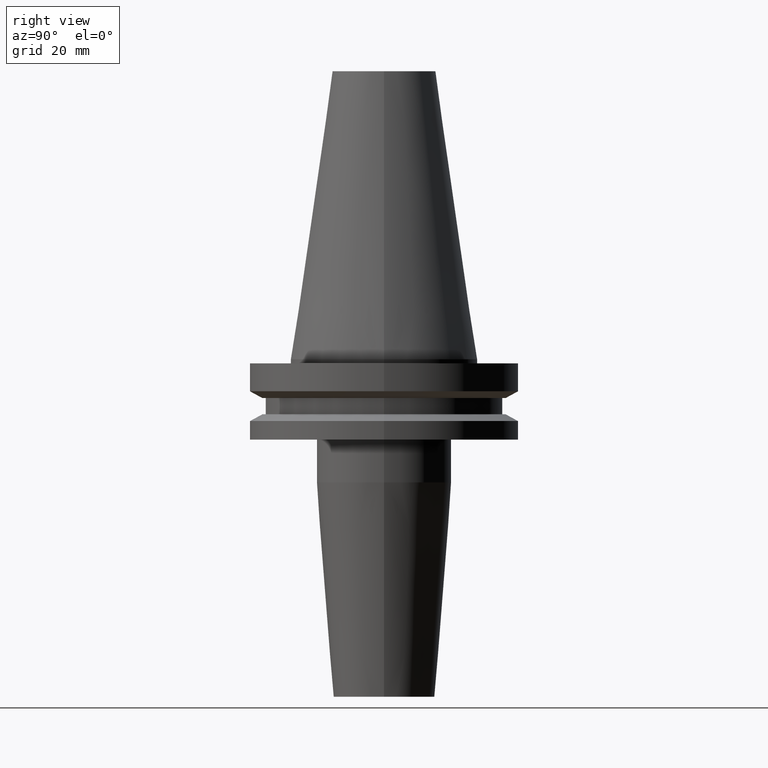
[diagram: clean part render]
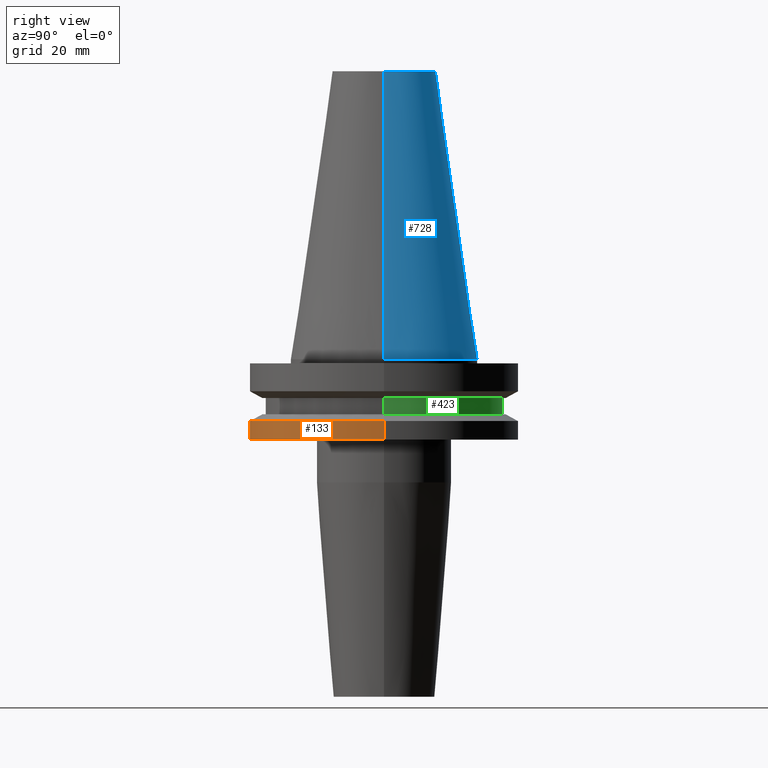
[diagram: same view with three faces highlighted in distinct colors, each labeled with its STEP entity id]
A machine part, right view with three faces highlighted in distinct colors.
Their STEP definitions:

[orange] entity #133 — the highlighted cylindrical surface (partial cylindrical patch) has radius 31.75 mm, axis along (-0, -0, 1).
#37 = FACE_OUTER_BOUND ( 'NONE', #410, .T. ) ;
#57 = AXIS2_PLACEMENT_3D ( 'NONE', #59, #308, #768 ) ;
#59 = CARTESIAN_POINT ( 'NONE',  ( 0.000000000000000000, 0.000000000000000000, -19.04999999999999716 ) ) ;
#68 = DIRECTION ( 'NONE',  ( -0.000000000000000000, -0.000000000000000000, 1.000000000000000000 ) ) ;
#75 = CARTESIAN_POINT ( 'NONE',  ( -31.75000000000000000, 3.888253587292846476E-15, -14.65472339340266572 ) ) ;
#82 = VERTEX_POINT ( 'NONE', #75 ) ;
#111 = VECTOR ( 'NONE', #479, 1000.000000000000000 ) ;
#133 = ADVANCED_FACE ( 'NONE', ( #37 ), #221, .T. ) ;
#139 = CARTESIAN_POINT ( 'NONE',  ( -31.74999999999999289, 3.888253587292845687E-15, -19.04999999999999716 ) ) ;
#141 = EDGE_CURVE ( 'NONE', #82, #577, #563, .T. ) ;
#163 = DIRECTION ( 'NONE',  ( 1.000000000000000000, 0.000000000000000000, 0.000000000000000000 ) ) ;
#192 = ORIENTED_EDGE ( 'NONE', *, *, #743, .T. ) ;
#221 = CYLINDRICAL_SURFACE ( 'NONE', #745, 31.75000000000000000 ) ;
#282 = CARTESIAN_POINT ( 'NONE',  ( 31.75000000000000000, 0.000000000000000000, 68.25000000000000000 ) ) ;
#308 = DIRECTION ( 'NONE',  ( -0.000000000000000000, -0.000000000000000000, 1.000000000000000000 ) ) ;
#318 = CIRCLE ( 'NONE', #57, 31.74999999999999289 ) ;
#349 = LINE ( 'NONE', #527, #111 ) ;
#402 = VECTOR ( 'NONE', #68, 1000.000000000000000 ) ;
#410 = EDGE_LOOP ( 'NONE', ( #711, #613, #192, #587 ) ) ;
#460 = DIRECTION ( 'NONE',  ( -0.000000000000000000, -0.000000000000000000, 1.000000000000000000 ) ) ;
#465 = AXIS2_PLACEMENT_3D ( 'NONE', #747, #460, #676 ) ;
#479 = DIRECTION ( 'NONE',  ( -0.000000000000000000, -0.000000000000000000, 1.000000000000000000 ) ) ;
#527 = CARTESIAN_POINT ( 'NONE',  ( -31.75000000000000000, 3.888253587292846476E-15, 68.25000000000000000 ) ) ;
#563 = CIRCLE ( 'NONE', #465, 31.75000000000000000 ) ;
#573 = VERTEX_POINT ( 'NONE', #600 ) ;
#577 = VERTEX_POINT ( 'NONE', #700 ) ;
#587 = ORIENTED_EDGE ( 'NONE', *, *, #141, .F. ) ;
#589 = EDGE_CURVE ( 'NONE', #775, #573, #318, .T. ) ;
#600 = CARTESIAN_POINT ( 'NONE',  ( 31.74999999999999289, 0.000000000000000000, -19.04999999999999716 ) ) ;
#613 = ORIENTED_EDGE ( 'NONE', *, *, #589, .T. ) ;
#624 = CARTESIAN_POINT ( 'NONE',  ( 0.000000000000000000, 0.000000000000000000, 68.25000000000000000 ) ) ;
#631 = EDGE_CURVE ( 'NONE', #775, #82, #349, .T. ) ;
#670 = LINE ( 'NONE', #282, #402 ) ;
#676 = DIRECTION ( 'NONE',  ( 1.000000000000000000, 0.000000000000000000, 0.000000000000000000 ) ) ;
#700 = CARTESIAN_POINT ( 'NONE',  ( 31.75000000000000000, 0.000000000000000000, -14.65472339340266572 ) ) ;
#711 = ORIENTED_EDGE ( 'NONE', *, *, #631, .F. ) ;
#734 = DIRECTION ( 'NONE',  ( -0.000000000000000000, -0.000000000000000000, 1.000000000000000000 ) ) ;
#743 = EDGE_CURVE ( 'NONE', #573, #577, #670, .T. ) ;
#745 = AXIS2_PLACEMENT_3D ( 'NONE', #624, #734, #163 ) ;
#747 = CARTESIAN_POINT ( 'NONE',  ( 0.000000000000000000, 0.000000000000000000, -14.65472339340266572 ) ) ;
#768 = DIRECTION ( 'NONE',  ( 1.000000000000000000, 0.000000000000000000, 0.000000000000000000 ) ) ;
#775 = VERTEX_POINT ( 'NONE', #139 ) ;

[blue] entity #728 — the highlighted conical surface has half-angle 8.297 deg.
#58 = CARTESIAN_POINT ( 'NONE',  ( 0.000000000000000000, 0.000000000000000000, 68.25000000000000000 ) ) ;
#61 = AXIS2_PLACEMENT_3D ( 'NONE', #104, #351, #422 ) ;
#65 = DIRECTION ( 'NONE',  ( -0.1443082272672999711, 0.000000000000000000, -0.9895327864921755756 ) ) ;
#70 = AXIS2_PLACEMENT_3D ( 'NONE', #316, #610, #212 ) ;
#71 = EDGE_CURVE ( 'NONE', #417, #170, #369, .T. ) ;
#97 = EDGE_CURVE ( 'NONE', #417, #177, #458, .T. ) ;
#104 = CARTESIAN_POINT ( 'NONE',  ( 0.000000000000000000, 0.000000000000000000, 0.000000000000000000 ) ) ;
#132 = LINE ( 'NONE', #255, #659 ) ;
#151 = CARTESIAN_POINT ( 'NONE',  ( -12.27178102086201150, 0.000000000000000000, 68.25000000000000000 ) ) ;
#170 = VERTEX_POINT ( 'NONE', #681 ) ;
#172 = ORIENTED_EDGE ( 'NONE', *, *, #616, .F. ) ;
#177 = VERTEX_POINT ( 'NONE', #151 ) ;
#212 = DIRECTION ( 'NONE',  ( -1.000000000000000000, 0.000000000000000000, 0.000000000000000000 ) ) ;
#218 = FACE_OUTER_BOUND ( 'NONE', #663, .T. ) ;
#228 = EDGE_CURVE ( 'NONE', #170, #355, #537, .T. ) ;
#255 = CARTESIAN_POINT ( 'NONE',  ( -22.22500000000000142, 0.000000000000000000, 0.000000000000000000 ) ) ;
#307 = DIRECTION ( 'NONE',  ( -0.000000000000000000, -0.000000000000000000, 1.000000000000000000 ) ) ;
#309 = ORIENTED_EDGE ( 'NONE', *, *, #71, .T. ) ;
#312 = CARTESIAN_POINT ( 'NONE',  ( 22.22500000000000142, 2.721777511104992849E-15, 0.000000000000000000 ) ) ;
#316 = CARTESIAN_POINT ( 'NONE',  ( 0.000000000000000000, 0.000000000000000000, 0.000000000000000000 ) ) ;
#339 = AXIS2_PLACEMENT_3D ( 'NONE', #58, #307, #773 ) ;
#351 = DIRECTION ( 'NONE',  ( -0.000000000000000000, -0.000000000000000000, 1.000000000000000000 ) ) ;
#355 = VERTEX_POINT ( 'NONE', #531 ) ;
#369 = LINE ( 'NONE', #312, #760 ) ;
#417 = VERTEX_POINT ( 'NONE', #437 ) ;
#422 = DIRECTION ( 'NONE',  ( 1.000000000000000000, 0.000000000000000000, 0.000000000000000000 ) ) ;
#437 = CARTESIAN_POINT ( 'NONE',  ( 12.27178102086201150, 2.112318622904291439E-15, 68.25000000000000000 ) ) ;
#458 = CIRCLE ( 'NONE', #339, 12.27178102086201150 ) ;
#492 = DIRECTION ( 'NONE',  ( 0.1443082272672999711, 1.767266086135276757E-17, -0.9895327864921755756 ) ) ;
#531 = CARTESIAN_POINT ( 'NONE',  ( -22.22500000000000142, 0.000000000000000000, 0.000000000000000000 ) ) ;
#537 = CIRCLE ( 'NONE', #61, 22.22500000000000142 ) ;
#547 = CONICAL_SURFACE ( 'NONE', #70, 22.22500000000000142, 0.1448138465474119174 ) ;
#610 = DIRECTION ( 'NONE',  ( 0.000000000000000000, 0.000000000000000000, -1.000000000000000000 ) ) ;
#616 = EDGE_CURVE ( 'NONE', #177, #355, #132, .T. ) ;
#649 = ORIENTED_EDGE ( 'NONE', *, *, #97, .F. ) ;
#659 = VECTOR ( 'NONE', #65, 999.9999999999998863 ) ;
#663 = EDGE_LOOP ( 'NONE', ( #649, #309, #772, #172 ) ) ;
#681 = CARTESIAN_POINT ( 'NONE',  ( 22.22500000000000142, 2.721777511104992849E-15, 0.000000000000000000 ) ) ;
#728 = ADVANCED_FACE ( 'NONE', ( #218 ), #547, .T. ) ;
#760 = VECTOR ( 'NONE', #492, 999.9999999999998863 ) ;
#772 = ORIENTED_EDGE ( 'NONE', *, *, #228, .T. ) ;
#773 = DIRECTION ( 'NONE',  ( 1.000000000000000000, 0.000000000000000000, 0.000000000000000000 ) ) ;

[green] entity #423 — the highlighted cylindrical surface (partial cylindrical patch) has radius 28.18 mm, axis along (-0, -0, 1).
#9 = CARTESIAN_POINT ( 'NONE',  ( 0.000000000000000000, 0.000000000000000000, 68.25000000000000000 ) ) ;
#11 = VECTOR ( 'NONE', #24, 1000.000000000000000 ) ;
#24 = DIRECTION ( 'NONE',  ( -0.000000000000000000, -0.000000000000000000, 1.000000000000000000 ) ) ;
#33 = CARTESIAN_POINT ( 'NONE',  ( -28.17999999999999972, 3.451054679997241634E-15, -13.05499999999999794 ) ) ;
#96 = EDGE_CURVE ( 'NONE', #406, #203, #731, .T. ) ;
#108 = VECTOR ( 'NONE', #596, 1000.000000000000000 ) ;
#112 = ORIENTED_EDGE ( 'NONE', *, *, #217, .F. ) ;
#137 = CYLINDRICAL_SURFACE ( 'NONE', #420, 28.17999999999999972 ) ;
#161 = DIRECTION ( 'NONE',  ( 1.000000000000000000, 0.000000000000000000, 0.000000000000000000 ) ) ;
#191 = VERTEX_POINT ( 'NONE', #512 ) ;
#203 = VERTEX_POINT ( 'NONE', #33 ) ;
#209 = FACE_OUTER_BOUND ( 'NONE', #438, .T. ) ;
#217 = EDGE_CURVE ( 'NONE', #191, #686, #508, .T. ) ;
#256 = ORIENTED_EDGE ( 'NONE', *, *, #96, .T. ) ;
#276 = AXIS2_PLACEMENT_3D ( 'NONE', #323, #363, #598 ) ;
#281 = DIRECTION ( 'NONE',  ( -0.000000000000000000, -0.000000000000000000, 1.000000000000000000 ) ) ;
#292 = AXIS2_PLACEMENT_3D ( 'NONE', #564, #281, #161 ) ;
#323 = CARTESIAN_POINT ( 'NONE',  ( 0.000000000000000000, 0.000000000000000000, -13.05499999999999794 ) ) ;
#341 = EDGE_CURVE ( 'NONE', #406, #191, #482, .T. ) ;
#346 = ORIENTED_EDGE ( 'NONE', *, *, #341, .F. ) ;
#356 = CARTESIAN_POINT ( 'NONE',  ( 28.17999999999999972, 0.000000000000000000, 68.25000000000000000 ) ) ;
#363 = DIRECTION ( 'NONE',  ( -0.000000000000000000, -0.000000000000000000, 1.000000000000000000 ) ) ;
#406 = VERTEX_POINT ( 'NONE', #550 ) ;
#420 = AXIS2_PLACEMENT_3D ( 'NONE', #9, #440, #667 ) ;
#423 = ADVANCED_FACE ( 'NONE', ( #209 ), #137, .T. ) ;
#438 = EDGE_LOOP ( 'NONE', ( #256, #568, #112, #346 ) ) ;
#440 = DIRECTION ( 'NONE',  ( -0.000000000000000000, -0.000000000000000000, 1.000000000000000000 ) ) ;
#471 = EDGE_CURVE ( 'NONE', #203, #686, #725, .T. ) ;
#482 = LINE ( 'NONE', #356, #108 ) ;
#508 = CIRCLE ( 'NONE', #292, 28.17999999999999972 ) ;
#512 = CARTESIAN_POINT ( 'NONE',  ( 28.17999999999999972, 0.000000000000000000, -9.204999999999991189 ) ) ;
#545 = CARTESIAN_POINT ( 'NONE',  ( -28.17999999999999972, 3.451054679997241634E-15, -9.204999999999991189 ) ) ;
#550 = CARTESIAN_POINT ( 'NONE',  ( 28.17999999999999972, 0.000000000000000000, -13.05499999999999794 ) ) ;
#561 = CARTESIAN_POINT ( 'NONE',  ( -28.17999999999999972, 3.451054679997241634E-15, 68.25000000000000000 ) ) ;
#564 = CARTESIAN_POINT ( 'NONE',  ( 0.000000000000000000, 0.000000000000000000, -9.204999999999991189 ) ) ;
#568 = ORIENTED_EDGE ( 'NONE', *, *, #471, .T. ) ;
#596 = DIRECTION ( 'NONE',  ( -0.000000000000000000, -0.000000000000000000, 1.000000000000000000 ) ) ;
#598 = DIRECTION ( 'NONE',  ( 1.000000000000000000, 0.000000000000000000, 0.000000000000000000 ) ) ;
#667 = DIRECTION ( 'NONE',  ( 1.000000000000000000, 0.000000000000000000, 0.000000000000000000 ) ) ;
#686 = VERTEX_POINT ( 'NONE', #545 ) ;
#725 = LINE ( 'NONE', #561, #11 ) ;
#731 = CIRCLE ( 'NONE', #276, 28.17999999999999972 ) ;